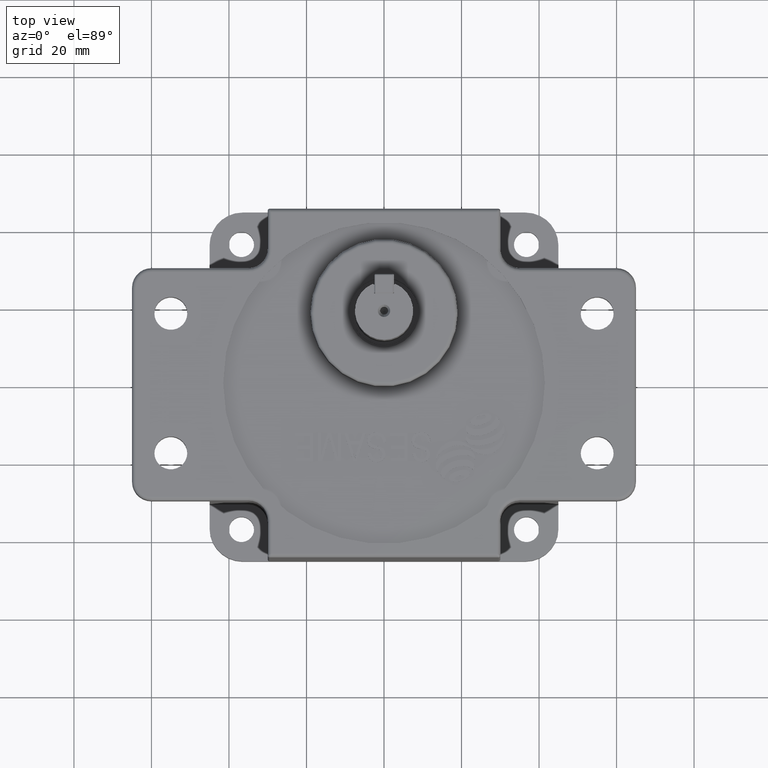
[diagram: clean part render]
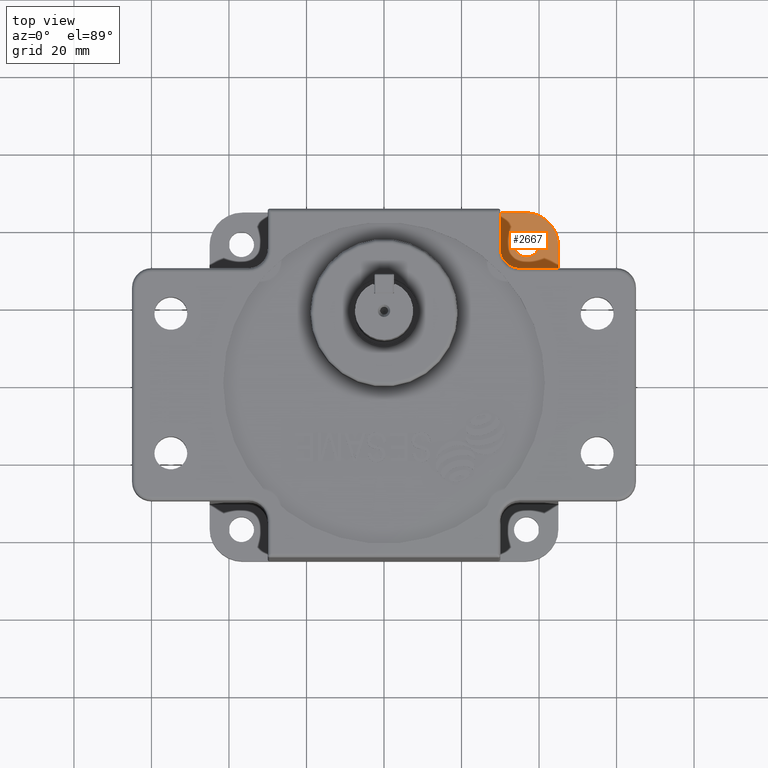
[diagram: same view with one face highlighted and labeled with its STEP entity id]
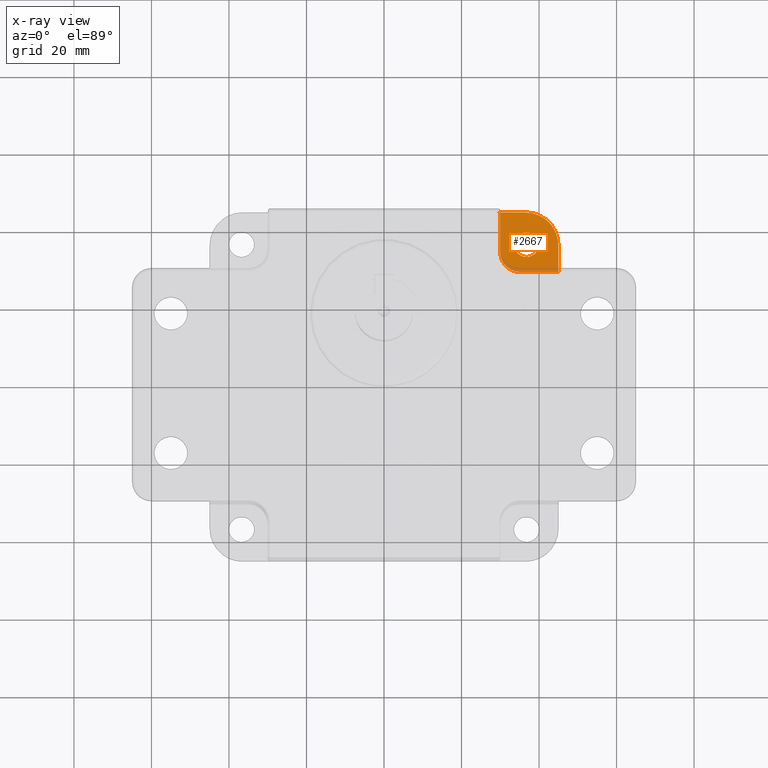
[diagram: x-ray of the same camera — body ghosted, the highlighted face saturated]
A machine part, top view. The second image highlights one B-rep face of the part: STEP entity #2667.
The next image is the same camera in x-ray: the body ghosted, the highlighted face saturated — about 9% of this face is hidden behind the body in this view.
In plain terms, the highlighted planar face has unit normal (0, -0, 1).
Its self-contained STEP definition (entity closure, byte-faithful):
#1241 = VERTEX_POINT ( 'NONE', #5970 ) ;
#1276 = EDGE_CURVE ( 'NONE', #1392, #1241, #6044, .T. ) ;
#1351 = EDGE_CURVE ( 'NONE', #1367, #1742, #6152, .T. ) ;
#1367 = VERTEX_POINT ( 'NONE', #6233 ) ;
#1392 = VERTEX_POINT ( 'NONE', #6209 ) ;
#1536 = VERTEX_POINT ( 'NONE', #6553 ) ;
#1538 = EDGE_CURVE ( 'NONE', #1536, #1392, #6551, .T. ) ;
#1738 = EDGE_CURVE ( 'NONE', #1742, #1367, #7050, .T. ) ;
#1742 = VERTEX_POINT ( 'NONE', #7043 ) ;
#2119 = ORIENTED_EDGE ( 'NONE', *, *, #17453, .T. ) ;
#2160 = ORIENTED_EDGE ( 'NONE', *, *, #17627, .T. ) ;
#2663 = ORIENTED_EDGE ( 'NONE', *, *, #1351, .T. ) ;
#2665 = EDGE_LOOP ( 'NONE', ( #2663, #2671 ) ) ;
#2666 = EDGE_CURVE ( 'NONE', #1536, #2702, #8693, .T. ) ;
#2667 = ADVANCED_FACE ( 'NONE', ( #8737, #8743 ), #8730, .T. ) ;
#2669 = EDGE_CURVE ( 'NONE', #2696, #2692, #8726, .T. ) ;
#2671 = ORIENTED_EDGE ( 'NONE', *, *, #1738, .T. ) ;
#2676 = EDGE_LOOP ( 'NONE', ( #2119, #2160, #17629, #17612, #17608, #17606, #17621 ) ) ;
#2692 = VERTEX_POINT ( 'NONE', #8728 ) ;
#2696 = VERTEX_POINT ( 'NONE', #8762 ) ;
#2702 = VERTEX_POINT ( 'NONE', #8767 ) ;
#5970 = CARTESIAN_POINT ( 'NONE',  ( -36.49999999999997900, 44.99999999999998600, -8.000000000000000000 ) ) ;
#6039 = DIRECTION ( 'NONE',  ( -1.000000000000000000, 0.0000000000000000000, 0.0000000000000000000 ) ) ;
#6041 = DIRECTION ( 'NONE',  ( 0.0000000000000000000, 0.0000000000000000000, -1.000000000000000000 ) ) ;
#6042 = CARTESIAN_POINT ( 'NONE',  ( -36.50000000000003600, 36.49999999999998600, -8.000000000000000000 ) ) ;
#6043 = AXIS2_PLACEMENT_3D ( 'NONE', #6042, #6041, #6039 ) ;
#6044 = CIRCLE ( 'NONE', #6043, 8.500000000000000000 ) ;
#6092 = CARTESIAN_POINT ( 'NONE',  ( -36.76955262170007200, 36.76955262170085300, -8.000000000000000000 ) ) ;
#6142 = AXIS2_PLACEMENT_3D ( 'NONE', #6092, #6190, #6189 ) ;
#6152 = CIRCLE ( 'NONE', #6142, 3.250000000000002700 ) ;
#6189 = DIRECTION ( 'NONE',  ( -1.000000000000000000, 0.0000000000000000000, 0.0000000000000000000 ) ) ;
#6190 = DIRECTION ( 'NONE',  ( -0.0000000000000000000, -0.0000000000000000000, 1.000000000000000000 ) ) ;
#6209 = CARTESIAN_POINT ( 'NONE',  ( -45.00000000000003600, 36.49999999999992200, -8.000000000000000000 ) ) ;
#6233 = CARTESIAN_POINT ( 'NONE',  ( -33.51955262170006500, 36.76955262170085300, -8.000000000000000000 ) ) ;
#6547 = DIRECTION ( 'NONE',  ( 0.0000000000000000000, 1.000000000000000000, 0.0000000000000000000 ) ) ;
#6548 = VECTOR ( 'NONE', #6547, 1000.000000000000000 ) ;
#6550 = CARTESIAN_POINT ( 'NONE',  ( -45.00000000000003600, -99.14142135623730200, -8.000000000000000000 ) ) ;
#6551 = LINE ( 'NONE', #6550, #6548 ) ;
#6553 = CARTESIAN_POINT ( 'NONE',  ( -45.00000000000004300, 29.66112734550886300, -8.000000000000000000 ) ) ;
#7043 = CARTESIAN_POINT ( 'NONE',  ( -40.01955262170007200, 36.76955262170085300, -8.000000000000000000 ) ) ;
#7046 = DIRECTION ( 'NONE',  ( -1.000000000000000000, 0.0000000000000000000, 0.0000000000000000000 ) ) ;
#7047 = DIRECTION ( 'NONE',  ( -0.0000000000000000000, -0.0000000000000000000, 1.000000000000000000 ) ) ;
#7048 = CARTESIAN_POINT ( 'NONE',  ( -36.76955262170007200, 36.76955262170085300, -8.000000000000000000 ) ) ;
#7049 = AXIS2_PLACEMENT_3D ( 'NONE', #7048, #7047, #7046 ) ;
#7050 = CIRCLE ( 'NONE', #7049, 3.250000000000002700 ) ;
#8692 = CARTESIAN_POINT ( 'NONE',  ( -140.2738274272094800, 29.66112734550887400, -8.000000000000000000 ) ) ;
#8693 = LINE ( 'NONE', #8692, #8739 ) ;
#8722 = DIRECTION ( 'NONE',  ( 1.306309764093868400E-016, -1.000000000000000000, 0.0000000000000000000 ) ) ;
#8723 = VECTOR ( 'NONE', #8722, 1000.000000000000000 ) ;
#8724 = CARTESIAN_POINT ( 'NONE',  ( -30.00000000000000000, 1.991124971407086700E-014, -8.000000000000000000 ) ) ;
#8725 = DIRECTION ( 'NONE',  ( -1.000000000000000000, 0.0000000000000000000, -0.0000000000000000000 ) ) ;
#8726 = LINE ( 'NONE', #8724, #8723 ) ;
#8728 = CARTESIAN_POINT ( 'NONE',  ( -30.00000000000000400, 34.66112734550885900, -8.000000000000000000 ) ) ;
#8730 = PLANE ( 'NONE',  #8742 ) ;
#8732 = DIRECTION ( 'NONE',  ( 0.0000000000000000000, 0.0000000000000000000, -1.000000000000000000 ) ) ;
#8733 = CARTESIAN_POINT ( 'NONE',  ( -140.2738274272094800, 5.506071964854271000E-015, -8.000000000000000000 ) ) ;
#8736 = DIRECTION ( 'NONE',  ( 1.000000000000000000, -1.192206401803552700E-016, 0.0000000000000000000 ) ) ;
#8737 = FACE_BOUND ( 'NONE', #2665, .T. ) ;
#8739 = VECTOR ( 'NONE', #8736, 1000.000000000000000 ) ;
#8742 = AXIS2_PLACEMENT_3D ( 'NONE', #8733, #8732, #8725 ) ;
#8743 = FACE_OUTER_BOUND ( 'NONE', #2676, .T. ) ;
#8762 = CARTESIAN_POINT ( 'NONE',  ( -30.00000000000000700, 44.49999999999998600, -8.000000000000000000 ) ) ;
#8767 = CARTESIAN_POINT ( 'NONE',  ( -35.00000000000000000, 29.66112734550885900, -8.000000000000000000 ) ) ;
#13613 = DIRECTION ( 'NONE',  ( 1.000000000000000000, 0.0000000000000000000, 0.0000000000000000000 ) ) ;
#13614 = VECTOR ( 'NONE', #13613, 1000.000000000000000 ) ;
#13615 = CARTESIAN_POINT ( 'NONE',  ( -2.733349261721706100E-014, 44.99999999999998600, -8.000000000000000000 ) ) ;
#13616 = LINE ( 'NONE', #13615, #13614 ) ;
#13647 = CARTESIAN_POINT ( 'NONE',  ( -29.50000000000000700, 44.99999999999998600, -8.000000000000000000 ) ) ;
#13805 = CARTESIAN_POINT ( 'NONE',  ( -35.00000000000000000, 34.66112734550885900, -8.000000000000000000 ) ) ;
#13806 = CIRCLE ( 'NONE', #13865, 4.999999999999997300 ) ;
#13822 = AXIS2_PLACEMENT_3D ( 'NONE', #13850, #13849, #13848 ) ;
#13826 = DIRECTION ( 'NONE',  ( 0.0000000000000000000, 0.0000000000000000000, -1.000000000000000000 ) ) ;
#13848 = DIRECTION ( 'NONE',  ( -1.000000000000000000, 0.0000000000000000000, 0.0000000000000000000 ) ) ;
#13849 = DIRECTION ( 'NONE',  ( -0.0000000000000000000, -0.0000000000000000000, 1.000000000000000000 ) ) ;
#13850 = CARTESIAN_POINT ( 'NONE',  ( -29.50000000000000700, 44.49999999999998600, -8.000000000000000000 ) ) ;
#13858 = CIRCLE ( 'NONE', #13822, 0.5000000000000004400 ) ;
#13864 = DIRECTION ( 'NONE',  ( -1.000000000000000000, 0.0000000000000000000, 0.0000000000000000000 ) ) ;
#13865 = AXIS2_PLACEMENT_3D ( 'NONE', #13805, #13826, #13864 ) ;
#17453 = EDGE_CURVE ( 'NONE', #1241, #17482, #13616, .T. ) ;
#17482 = VERTEX_POINT ( 'NONE', #13647 ) ;
#17606 = ORIENTED_EDGE ( 'NONE', *, *, #1538, .T. ) ;
#17608 = ORIENTED_EDGE ( 'NONE', *, *, #2666, .F. ) ;
#17612 = ORIENTED_EDGE ( 'NONE', *, *, #17619, .T. ) ;
#17619 = EDGE_CURVE ( 'NONE', #2692, #2702, #13806, .T. ) ;
#17621 = ORIENTED_EDGE ( 'NONE', *, *, #1276, .T. ) ;
#17627 = EDGE_CURVE ( 'NONE', #17482, #2696, #13858, .T. ) ;
#17629 = ORIENTED_EDGE ( 'NONE', *, *, #2669, .T. ) ;